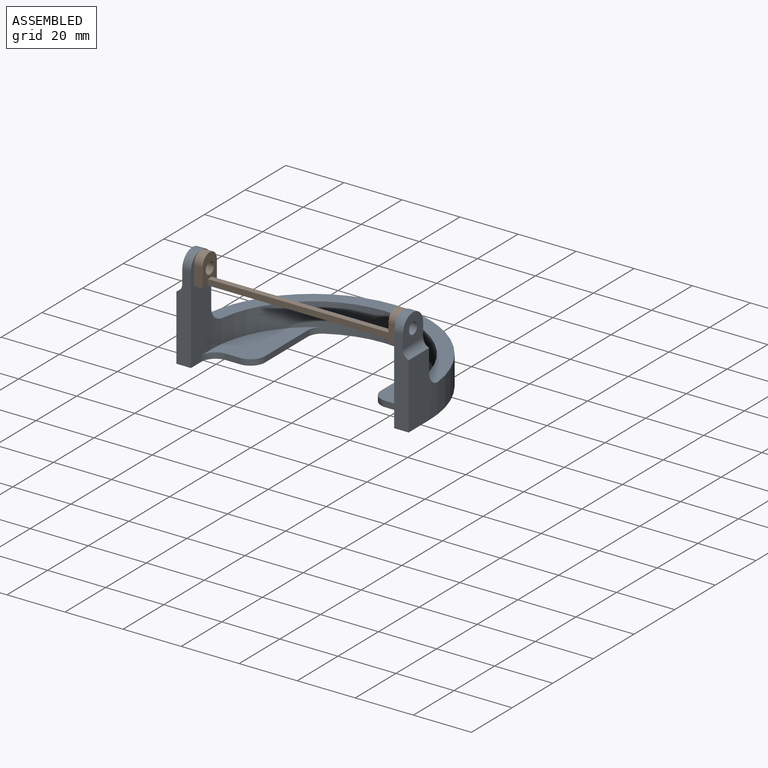
[diagram: assembled view]
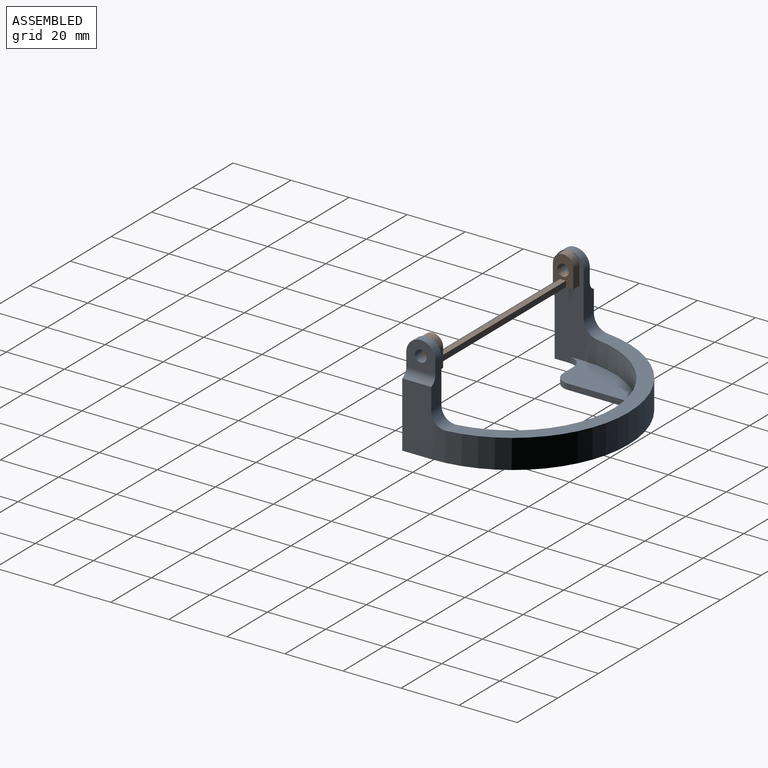
[diagram: assembled view, second angle]
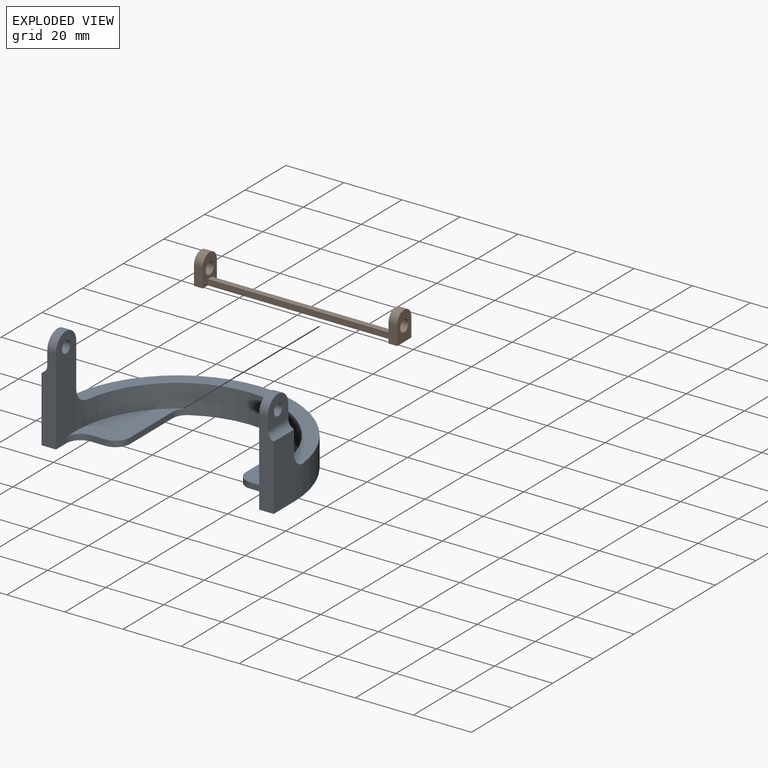
[diagram: exploded view]
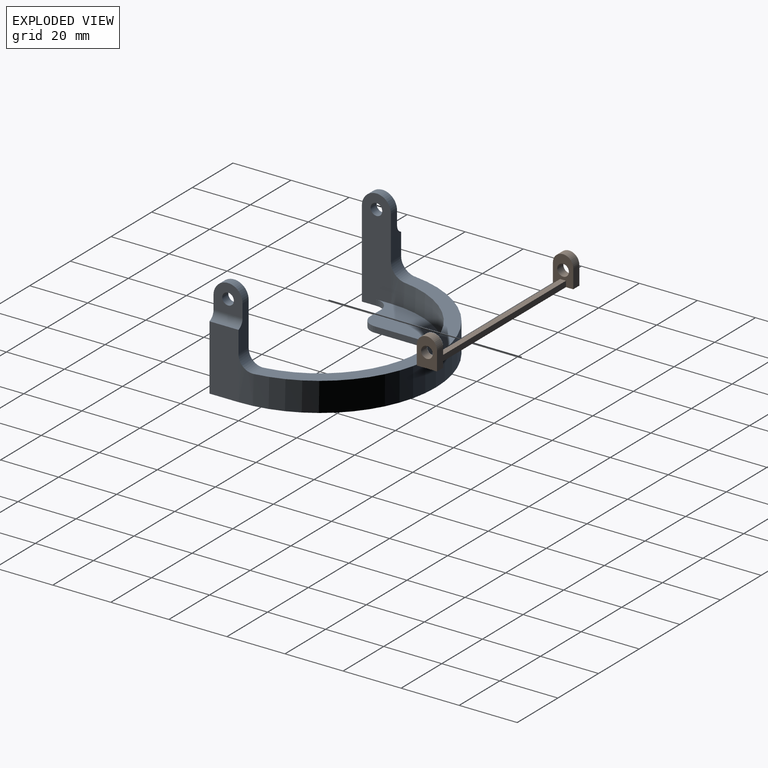
[diagram: exploded view, second angle]
ASSEMBLY  parts=2 mates=3
PART A: 34 faces, bbox 80x50x35 mm
  f0: plane 15x5mm, normal (0,1,0), area 61.5mm2, adj f16,f17,f20,f22,f31,f32
  f1: cylinder r=2mm len=4mm, axis (-1,0,0), area 37.7mm2, adj f16,f31
  f2: plane 30x5mm, normal (0,-1,0), area 136.5mm2, adj f11,f14,f15,f23,f30,f33
  f3: plane 15x5mm, normal (0,1,0), area 61.5mm2, adj f14,f15,f21,f23,f30,f33
  f4: cylinder r=2mm len=4mm, axis (-1,0,0), area 37.7mm2, adj f14,f30
  f5: cylinder r=35mm len=70mm, axis (0,0,-1), area 963.7mm2, adj f11,f12,f13,f14,f16,f19,f20,f21
  f6: cylinder r=40mm len=80mm, axis (0,0,-1), area 1267.4mm2, adj f11,f15,f17,f19,f20,f21
  f7: plane 5x2mm, normal (0,-1,0), area 10mm2, adj f11,f13,f24,f29
  f8: plane 20.98x2mm, normal (1,0,0), area 42mm2, adj f11,f12,f26,f27
  f9: plane 20.98x2mm, normal (-1,0,0), area 42mm2, adj f11,f13,f28,f29
  f10: plane 5x2mm, normal (0,-1,0), area 10mm2, adj f11,f12,f25,f26
  f11: plane 80x50mm, normal (0,0,-1), area 1296.2mm2, adj f2,f5,f6,f7,f8,f9,f10,f14
  f12: plane 35.31x17.5mm, normal (0,0,1), area 303.6mm2, adj f5,f8,f10,f14,f25,f26,f27
  f13: plane 35.31x17.5mm, normal (0,0,1), area 303.6mm2, adj f5,f7,f9,f16,f24,f28,f29
  f14: plane 35x10mm, normal (1,0,0), area 316.7mm2, adj f2,f3,f4,f5,f11,f12,f23,f25
  f15: plane 22.5x10mm, normal (-1,0,0), area 225mm2, adj f2,f3,f6,f11,f33
  f16: plane 35x10mm, normal (-1,0,0), area 316.7mm2, adj f0,f1,f5,f11,f13,f18,f22,f24
  f17: plane 22.5x10mm, normal (1,0,0), area 225mm2, adj f0,f6,f11,f18,f32
  f18: plane 30x5mm, normal (0,-1,0), area 136.5mm2, adj f11,f16,f17,f22,f31,f32
  f19: plane 79.37x35mm, normal (0,0,1), area 538.9mm2, adj f5,f6,f20,f21
  f20: cylinder r=5mm len=5.36mm, axis (-1,0,0), area 39.4mm2, adj f0,f5,f6,f19
  f21: cylinder r=5mm len=5.36mm, axis (-1,0,0), area 39.4mm2, adj f3,f5,f6,f19
  f22: cylinder r=5mm len=10mm, axis (1,0,0), area 47.1mm2, adj f0,f16,f18,f31
  f23: cylinder r=5mm len=10mm, axis (1,0,0), area 47.1mm2, adj f2,f3,f14,f30
  f24: cylinder r=5mm len=5mm, axis (0,0,-1), area 15.7mm2, adj f7,f11,f13,f16
  f25: cylinder r=5mm len=5mm, axis (0,0,-1), area 15.7mm2, adj f10,f11,f12,f14
  f26: cylinder r=5mm len=5mm, axis (0,0,-1), area 15.7mm2, adj f8,f10,f11,f12
  f27: cylinder r=5mm len=4.33mm, axis (0,0,-1), area 10.5mm2, adj f5,f8,f11,f12
  f28: cylinder r=5mm len=4.33mm, axis (0,0,-1), area 10.5mm2, adj f5,f9,f11,f13
  f29: cylinder r=5mm len=5mm, axis (0,0,-1), area 15.7mm2, adj f7,f9,f11,f13
  f30: plane 10x9.67mm, normal (-1,0,0), area 73.4mm2, adj f2,f3,f4,f23,f33
  f31: plane 10x9.67mm, normal (1,0,0), area 73.4mm2, adj f0,f1,f18,f22,f32
  f32: cylinder r=3mm len=10mm, axis (0,-1,0), area 36.9mm2, adj f0,f17,f18,f31
  f33: cylinder r=3mm len=10mm, axis (0,1,0), area 36.9mm2, adj f2,f3,f15,f30
PART B: 16 faces, bbox 70x7x10 mm
  f0: plane 64x2mm, normal (0,0,1), area 128mm2, adj f1,f5,f6,f10
  f1: plane 64x2mm, normal (0,1,0), area 128mm2, adj f0,f5,f10,f11
  f2: plane 6.5x3mm, normal (0,1,0), area 19.5mm2, adj f3,f5,f11,f15
  f3: plane 10x7mm, normal (-1,0,0), area 52.2mm2, adj f2,f4,f11,f13,f15
  f4: plane 6.5x3mm, normal (0,-1,0), area 19.5mm2, adj f3,f5,f11,f15
  f5: plane 10x7mm, normal (1,0,0), area 48.2mm2, adj f0,f1,f2,f4,f6,f11,f13,f15
  f6: plane 64x2mm, normal (0,-1,0), area 128mm2, adj f0,f5,f10,f11
  f7: plane 6.5x3mm, normal (0,-1,0), area 19.5mm2, adj f8,f10,f11,f14
  f8: plane 10x7mm, normal (1,0,0), area 52.2mm2, adj f7,f9,f11,f12,f14
  f9: plane 6.5x3mm, normal (0,1,0), area 19.5mm2, adj f8,f10,f11,f14
  f10: plane 10x7mm, normal (-1,0,0), area 48.2mm2, adj f0,f1,f6,f7,f9,f11,f12,f14
  f11: plane 70x7mm, normal (0,0,-1), area 170mm2, adj f1,f2,f3,f4,f5,f6,f7,f8
  f12: cylinder r=2mm len=4mm, axis (-1,0,0), area 37.7mm2, adj f8,f10
  f13: cylinder r=2mm len=4mm, axis (-1,0,0), area 37.7mm2, adj f3,f5
  f14: cylinder r=3.5mm len=7mm, axis (1,0,0), area 33mm2, adj f7,f8,f9,f10
  f15: cylinder r=3.5mm len=7mm, axis (-1,0,0), area 33mm2, adj f2,f3,f4,f5
PLACE A t=(-7.45,21.15,2.76)mm
PLACE B t=(-7.45,16.15,27.76)mm
MATE cylindrical A.f1 <-> B.f12  axis (1,0,0) through (-42.45,16.15,32.76)mm
MATE planar A.f14 <-> B.f3  axis (1,0,0) through (-42.45,21.15,25.26)mm
MATE planar B.f8 <-> A.f16  axis (1,0,0) through (27.55,16.15,32.33)mm
